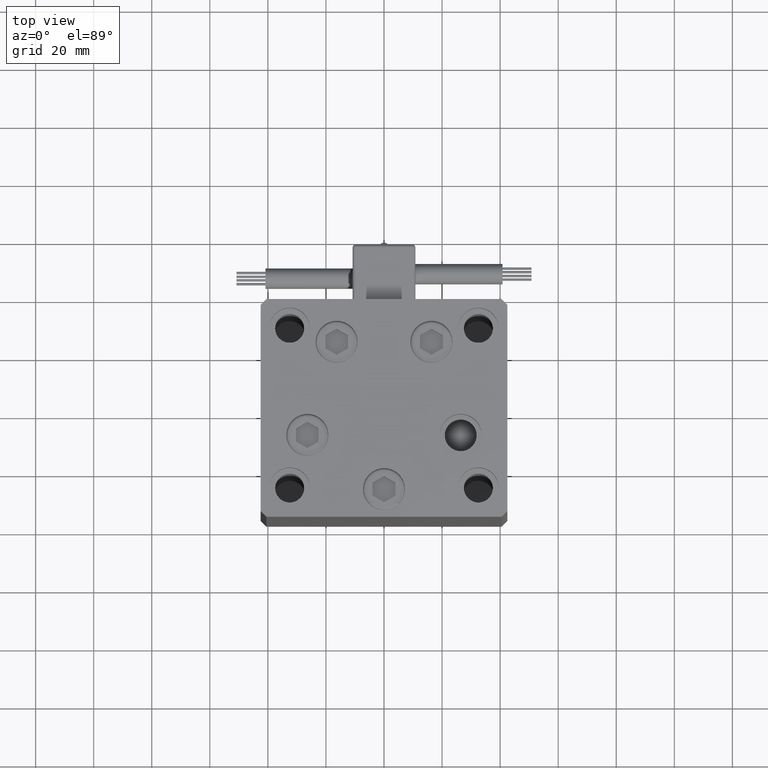
[diagram: clean part render]
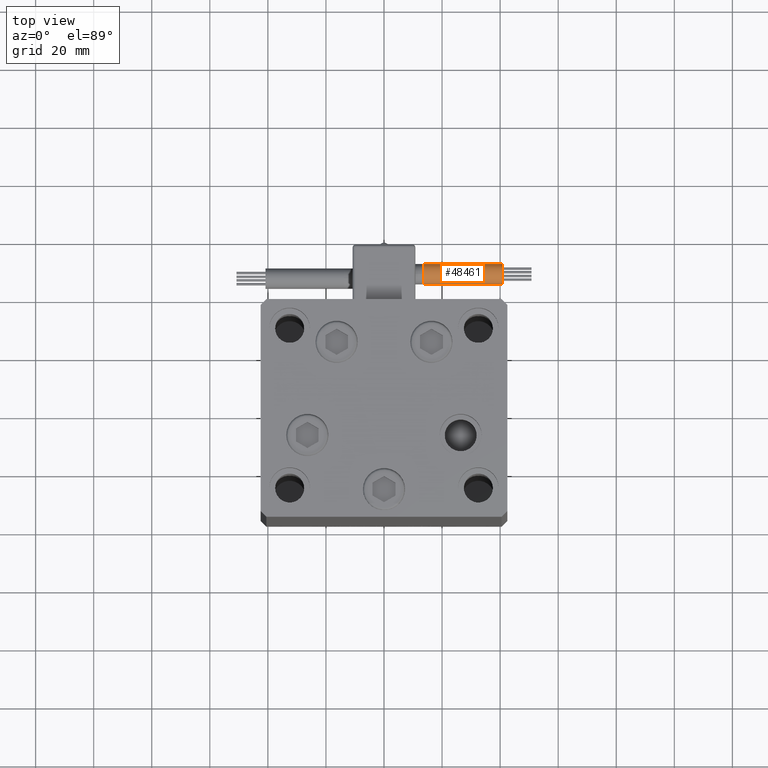
[diagram: same view with one face highlighted and labeled with its STEP entity id]
A machine part, top view. The second image highlights one B-rep face of the part: STEP entity #48461.
In plain terms, the highlighted cylindrical surface (edge-blend (fillet) strip) has radius 3.5 mm, axis along (1, -0, 0).
Its self-contained STEP definition (entity closure, byte-faithful):
#355 = CIRCLE ( 'NONE', #9603, 3.500000000000003109 ) ;
#2354 = CYLINDRICAL_SURFACE ( 'NONE', #36112, 3.500000000000003109 ) ;
#2979 = EDGE_CURVE ( 'NONE', #23413, #34296, #22390, .T. ) ;
#3210 = VERTEX_POINT ( 'NONE', #36699 ) ;
#3771 = CARTESIAN_POINT ( 'NONE',  ( 13.79999999999999893, 42.00000000000000000, -65.00000000000000000 ) ) ;
#3809 = CARTESIAN_POINT ( 'NONE',  ( 40.80000000000000426, 42.00000000000000000, -65.00000000000000000 ) ) ;
#4597 = DIRECTION ( 'NONE',  ( 0.000000000000000000, 0.000000000000000000, -1.000000000000000000 ) ) ;
#6296 = VECTOR ( 'NONE', #12309, 1000.000000000000000 ) ;
#7521 = EDGE_CURVE ( 'NONE', #3210, #23413, #23625, .T. ) ;
#8096 = LINE ( 'NONE', #8874, #6296 ) ;
#8829 = ORIENTED_EDGE ( 'NONE', *, *, #7521, .T. ) ;
#8874 = CARTESIAN_POINT ( 'NONE',  ( 13.80000000000000071, 45.50000000000000711, -65.00000000000000000 ) ) ;
#9387 = AXIS2_PLACEMENT_3D ( 'NONE', #3771, #23248, #11424 ) ;
#9603 = AXIS2_PLACEMENT_3D ( 'NONE', #3809, #48484, #4597 ) ;
#9998 = FACE_OUTER_BOUND ( 'NONE', #21538, .T. ) ;
#11424 = DIRECTION ( 'NONE',  ( 0.000000000000000000, 0.000000000000000000, -1.000000000000000000 ) ) ;
#11559 = CARTESIAN_POINT ( 'NONE',  ( 13.79999999999999893, 41.99999999999999289, -61.50000000000000000 ) ) ;
#12309 = DIRECTION ( 'NONE',  ( 1.000000000000000000, -2.599999999999999847E-16, 2.220446049250000002E-16 ) ) ;
#17345 = VERTEX_POINT ( 'NONE', #32541 ) ;
#19087 = ORIENTED_EDGE ( 'NONE', *, *, #44550, .T. ) ;
#19330 = VECTOR ( 'NONE', #29922, 1000.000000000000000 ) ;
#19609 = VERTEX_POINT ( 'NONE', #33335 ) ;
#20779 = CARTESIAN_POINT ( 'NONE',  ( 13.79999999999999716, 38.50000000000000000, -65.00000000000000000 ) ) ;
#20976 = CARTESIAN_POINT ( 'NONE',  ( 13.79999999999999893, 42.00000000000000000, -65.00000000000000000 ) ) ;
#21538 = EDGE_LOOP ( 'NONE', ( #51639, #8829, #24342, #19087, #27103 ) ) ;
#22390 = CIRCLE ( 'NONE', #50063, 3.500000000000003109 ) ;
#23248 = DIRECTION ( 'NONE',  ( 1.000000000000000000, 0.000000000000000000, 2.220446049250000002E-16 ) ) ;
#23413 = VERTEX_POINT ( 'NONE', #11559 ) ;
#23625 = CIRCLE ( 'NONE', #9387, 3.500000000000003109 ) ;
#24342 = ORIENTED_EDGE ( 'NONE', *, *, #2979, .T. ) ;
#26031 = CARTESIAN_POINT ( 'NONE',  ( 13.79999999999999893, 42.00000000000000000, -65.00000000000000000 ) ) ;
#26881 = EDGE_CURVE ( 'NONE', #17345, #19609, #355, .T. ) ;
#27103 = ORIENTED_EDGE ( 'NONE', *, *, #26881, .F. ) ;
#27638 = EDGE_CURVE ( 'NONE', #3210, #17345, #8096, .T. ) ;
#28939 = LINE ( 'NONE', #20779, #19330 ) ;
#29922 = DIRECTION ( 'NONE',  ( 1.000000000000000000, -2.599999999999999847E-16, 2.220446049250000002E-16 ) ) ;
#32541 = CARTESIAN_POINT ( 'NONE',  ( 40.80000000000000426, 45.50000000000000711, -65.00000000000000000 ) ) ;
#32850 = CARTESIAN_POINT ( 'NONE',  ( 13.79999999999999893, 38.50000000000000000, -65.00000000000000000 ) ) ;
#33335 = CARTESIAN_POINT ( 'NONE',  ( 40.80000000000000426, 38.50000000000000000, -65.00000000000000000 ) ) ;
#33882 = DIRECTION ( 'NONE',  ( 0.000000000000000000, 0.000000000000000000, -1.000000000000000000 ) ) ;
#34296 = VERTEX_POINT ( 'NONE', #32850 ) ;
#36112 = AXIS2_PLACEMENT_3D ( 'NONE', #26031, #38384, #38639 ) ;
#36699 = CARTESIAN_POINT ( 'NONE',  ( 13.79999999999999893, 45.50000000000000711, -65.00000000000000000 ) ) ;
#38384 = DIRECTION ( 'NONE',  ( 1.000000000000000000, -2.599999999999999847E-16, 2.220446049250000002E-16 ) ) ;
#38639 = DIRECTION ( 'NONE',  ( -4.956352788505158337E-16, -1.000000000000000000, 0.000000000000000000 ) ) ;
#44550 = EDGE_CURVE ( 'NONE', #34296, #19609, #28939, .T. ) ;
#45951 = DIRECTION ( 'NONE',  ( 1.000000000000000000, 0.000000000000000000, 2.220446049250000002E-16 ) ) ;
#48461 = ADVANCED_FACE ( 'NONE', ( #9998 ), #2354, .T. ) ;
#48484 = DIRECTION ( 'NONE',  ( 1.000000000000000000, 0.000000000000000000, 2.220446049250000002E-16 ) ) ;
#50063 = AXIS2_PLACEMENT_3D ( 'NONE', #20976, #45951, #33882 ) ;
#51639 = ORIENTED_EDGE ( 'NONE', *, *, #27638, .F. ) ;